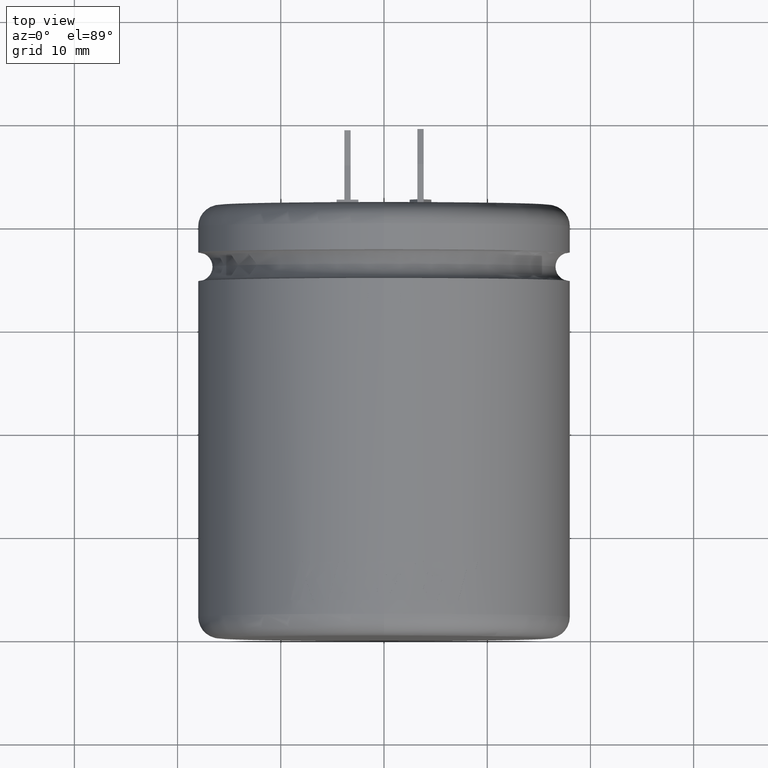
[diagram: clean part render]
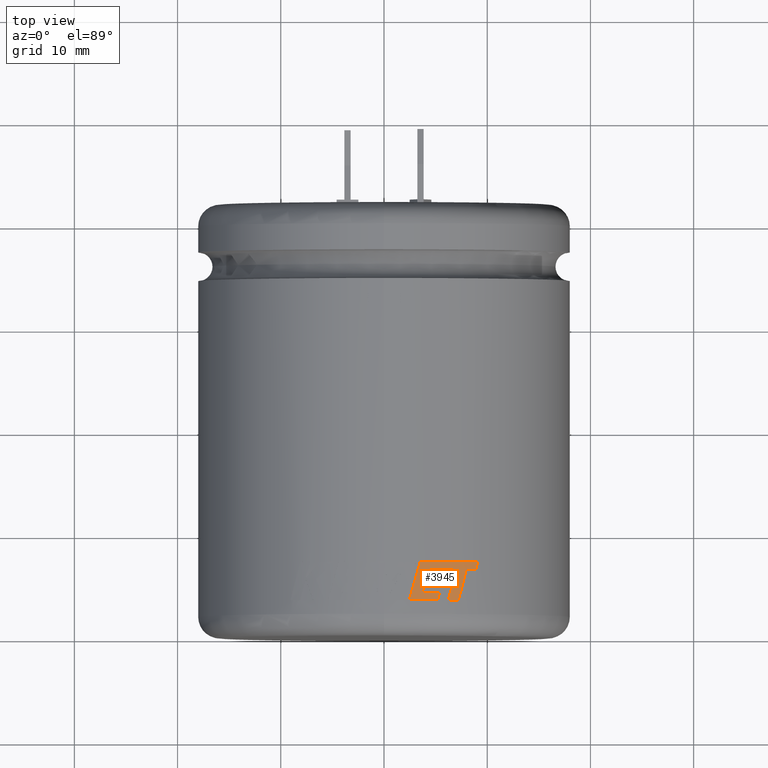
[diagram: same view with one face highlighted and labeled with its STEP entity id]
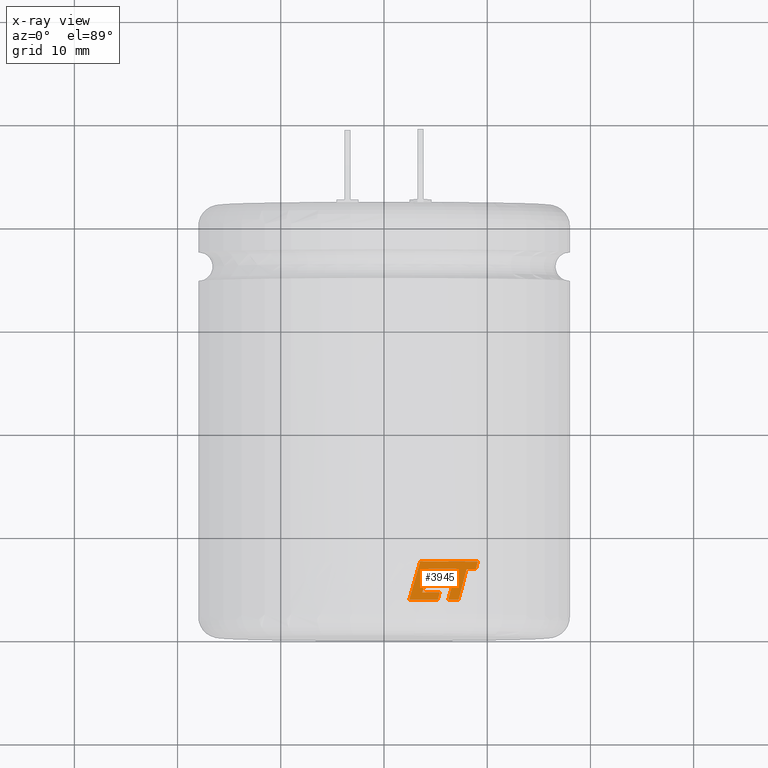
[diagram: x-ray of the same camera — body ghosted, the highlighted face saturated]
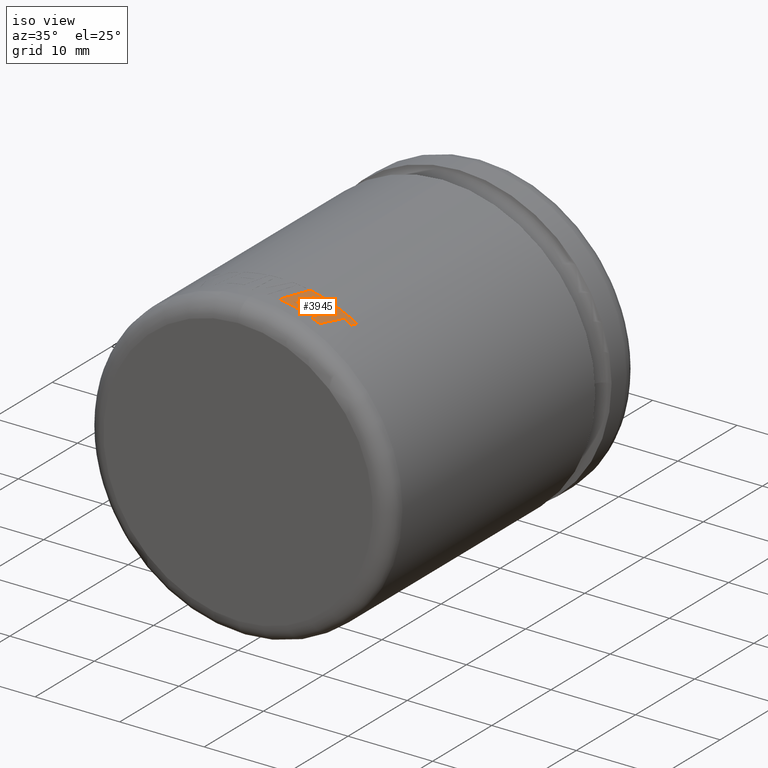
[diagram: same view with one face highlighted and labeled with its STEP entity id]
A machine part, top view. The second image highlights one B-rep face of the part: STEP entity #3945.
The next image is the same camera in x-ray: the body ghosted, the highlighted face saturated — about 0% of this face is hidden behind the body in this view.
A second angle (iso view) of the same face is appended — the face is thin or edge-on in the first view.
In plain terms, the highlighted cylindrical surface (partial cylindrical patch) has radius 17.99 mm, axis along (-0, -1, -0).
Its self-contained STEP definition (entity closure, byte-faithful):
#32 = AXIS2_PLACEMENT_3D ( 'NONE', #847, #2744, #3471 ) ;
#65 = ORIENTED_EDGE ( 'NONE', *, *, #3657, .T. ) ;
#70 = CARTESIAN_POINT ( 'NONE',  ( 3.875039006368816700, 4.759102484852002500, 17.56792295748571000 ) ) ;
#112 = CARTESIAN_POINT ( 'NONE',  ( 7.035057739732624600, 6.438231380346589800, 16.55741714756948500 ) ) ;
#123 = CARTESIAN_POINT ( 'NONE',  ( 6.336255115269936200, 6.441741036397330000, 16.84144248130786900 ) ) ;
#215 = CARTESIAN_POINT ( 'NONE',  ( 0.0000000000000000000, 4.142248356456962100, 0.0000000000000000000 ) ) ;
#219 = CARTESIAN_POINT ( 'NONE',  ( 7.740011967512791600, 5.436730270272074800, 16.24238547502647400 ) ) ;
#235 = VERTEX_POINT ( 'NONE', #2905 ) ;
#298 = VERTEX_POINT ( 'NONE', #1136 ) ;
#364 = VERTEX_POINT ( 'NONE', #3062 ) ;
#382 = VERTEX_POINT ( 'NONE', #1583 ) ;
#439 = B_SPLINE_CURVE_WITH_KNOTS ( 'NONE', 3,
 ( #2307, #3045, #70, #1973 ),
 .UNSPECIFIED., .F., .F.,
 ( 4, 4 ),
 ( 0.0000000000000000000, 1.000000000000000000 ),
 .UNSPECIFIED. ) ;
#468 = DIRECTION ( 'NONE',  ( 0.0000000000000000000, 0.0000000000000000000, -1.000000000000000000 ) ) ;
#470 = AXIS2_PLACEMENT_3D ( 'NONE', #3847, #3133, #3892 ) ;
#495 = CARTESIAN_POINT ( 'NONE',  ( 7.035057739732624600, 6.438231380346589800, 16.55741714756948500 ) ) ;
#501 = B_SPLINE_CURVE_WITH_KNOTS ( 'NONE', 3,
 ( #3207, #4729, #2076, #2857 ),
 .UNSPECIFIED., .F., .F.,
 ( 4, 4 ),
 ( 0.0000000000000000000, 1.000000000000000000 ),
 .UNSPECIFIED. ) ;
#541 = EDGE_CURVE ( 'NONE', #1486, #2996, #4773, .T. ) ;
#543 = VERTEX_POINT ( 'NONE', #3527 ) ;
#602 = EDGE_CURVE ( 'NONE', #298, #2828, #4109, .T. ) ;
#679 = CARTESIAN_POINT ( 'NONE',  ( 5.204913970324117400, 3.433728050141748900, 17.22059727656171500 ) ) ;
#798 = DIRECTION ( 'NONE',  ( -0.0000000000000000000, -1.000000000000000000, -0.0000000000000000000 ) ) ;
#800 = CARTESIAN_POINT ( 'NONE',  ( 3.516420449642963900, 7.157156118639040400, 17.64298407926881000 ) ) ;
#847 = CARTESIAN_POINT ( 'NONE',  ( 0.0000000000000000000, 5.067529549049536000, 0.0000000000000000000 ) ) ;
#855 = CARTESIAN_POINT ( 'NONE',  ( 6.232665063677374400, 3.433728050141735100, 16.87584031104867700 ) ) ;
#900 = CIRCLE ( 'NONE', #4129, 17.98999999999999800 ) ;
#918 = AXIS2_PLACEMENT_3D ( 'NONE', #3195, #2130, #3627 ) ;
#934 = DIRECTION ( 'NONE',  ( -0.0000000000000000000, -1.000000000000000000, -0.0000000000000000000 ) ) ;
#953 = ORIENTED_EDGE ( 'NONE', *, *, #1103, .F. ) ;
#1046 = CARTESIAN_POINT ( 'NONE',  ( 5.563200647594504400, 5.296932744752842500, 17.10833682098228100 ) ) ;
#1084 = VERTEX_POINT ( 'NONE', #4607 ) ;
#1103 = EDGE_CURVE ( 'NONE', #298, #543, #1348, .T. ) ;
#1119 = CARTESIAN_POINT ( 'NONE',  ( 7.997718135403983900, 6.438231380337257700, 16.11448431153259600 ) ) ;
#1126 = EDGE_CURVE ( 'NONE', #4309, #3087, #4498, .T. ) ;
#1127 = ORIENTED_EDGE ( 'NONE', *, *, #2392, .F. ) ;
#1136 = CARTESIAN_POINT ( 'NONE',  ( 5.500837962627832300, 5.067529549049536000, 17.12836482881283500 ) ) ;
#1240 = CARTESIAN_POINT ( 'NONE',  ( 6.502624833260656900, 4.435229160210015600, 16.77613749367972300 ) ) ;
#1256 = CARTESIAN_POINT ( 'NONE',  ( 5.333033303281469600, 3.906074921018548800, 17.18148252866608400 ) ) ;
#1306 = CARTESIAN_POINT ( 'NONE',  ( 9.075961542436331800, 7.157156118639027100, 15.53277251749399000 ) ) ;
#1348 = CIRCLE ( 'NONE', #32, 17.98999999999999800 ) ;
#1366 = DIRECTION ( 'NONE',  ( 0.0000000000000000000, 0.0000000000000000000, -1.000000000000000000 ) ) ;
#1382 = FACE_OUTER_BOUND ( 'NONE', #1839, .T. ) ;
#1409 = CARTESIAN_POINT ( 'NONE',  ( 7.035057739732624600, 6.438231380346589800, 16.55741714756948500 ) ) ;
#1425 = ORIENTED_EDGE ( 'NONE', *, *, #3791, .T. ) ;
#1486 = VERTEX_POINT ( 'NONE', #3544 ) ;
#1520 = EDGE_CURVE ( 'NONE', #1486, #4207, #1596, .T. ) ;
#1532 = CARTESIAN_POINT ( 'NONE',  ( 5.687594160713491200, 5.755739136159482100, 17.06726025649745900 ) ) ;
#1572 = B_SPLINE_CURVE_WITH_KNOTS ( 'NONE', 3,
 ( #1409, #2616, #1240, #3457 ),
 .UNSPECIFIED., .F., .F.,
 ( 4, 4 ),
 ( 0.0000000000000000000, 1.000000000000000000 ),
 .UNSPECIFIED. ) ;
#1583 = CARTESIAN_POINT ( 'NONE',  ( 4.152098789925732400, 5.755739136159496300, 17.50429020665211900 ) ) ;
#1596 = B_SPLINE_CURVE_WITH_KNOTS ( 'NONE', 3,
 ( #2867, #3255, #219, #3987 ),
 .UNSPECIFIED., .F., .F.,
 ( 4, 4 ),
 ( 0.0000000000000000000, 1.000000000000000000 ),
 .UNSPECIFIED. ) ;
#1601 = B_SPLINE_CURVE_WITH_KNOTS ( 'NONE', 3,
 ( #4595, #123, #3150, #495 ),
 .UNSPECIFIED., .F., .F.,
 ( 4, 4 ),
 ( 0.0000000000000000000, 1.000000000000000000 ),
 .UNSPECIFIED. ) ;
#1658 = DIRECTION ( 'NONE',  ( 0.0000000000000000000, 0.0000000000000000000, -1.000000000000000000 ) ) ;
#1742 = AXIS2_PLACEMENT_3D ( 'NONE', #3893, #934, #1658 ) ;
#1755 = CARTESIAN_POINT ( 'NONE',  ( 4.347806859457654700, 6.448296168183411200, 17.45670861052715500 ) ) ;
#1768 = EDGE_CURVE ( 'NONE', #2672, #4226, #2823, .T. ) ;
#1791 = CARTESIAN_POINT ( 'NONE',  ( 4.899400562229700100, 6.446696066929834300, 17.31932745019205600 ) ) ;
#1821 = ORIENTED_EDGE ( 'NONE', *, *, #4786, .T. ) ;
#1826 = EDGE_CURVE ( 'NONE', #2707, #4056, #1601, .T. ) ;
#1839 = EDGE_LOOP ( 'NONE', ( #1425, #4407, #3136, #2029, #4461, #4411, #2232, #3338, #3431, #4433, #1127, #4775, #4369, #65, #953, #4276, #1821, #4755 ) ) ;
#1973 = CARTESIAN_POINT ( 'NONE',  ( 3.960881484385034800, 5.067529549049522700, 17.54854745745800300 ) ) ;
#1987 = CARTESIAN_POINT ( 'NONE',  ( 9.016525734421604100, 6.917487561937582200, 15.56750148215099300 ) ) ;
#2029 = ORIENTED_EDGE ( 'NONE', *, *, #541, .F. ) ;
#2035 = CARTESIAN_POINT ( 'NONE',  ( 5.269027747821637000, 3.669901485580141700, 17.20121893033900300 ) ) ;
#2076 = CARTESIAN_POINT ( 'NONE',  ( 4.282660302386291000, 6.217443824175425100, 17.47293415762336400 ) ) ;
#2130 = DIRECTION ( 'NONE',  ( -0.0000000000000000000, -1.000000000000000000, -0.0000000000000000000 ) ) ;
#2133 = AXIS2_PLACEMENT_3D ( 'NONE', #4273, #4654, #3639 ) ;
#2204 = CIRCLE ( 'NONE', #470, 17.98999999999999800 ) ;
#2232 = ORIENTED_EDGE ( 'NONE', *, *, #1768, .T. ) ;
#2271 = EDGE_CURVE ( 'NONE', #4226, #235, #4739, .T. ) ;
#2273 = CARTESIAN_POINT ( 'NONE',  ( 0.0000000000000000000, 5.755739136159482100, 0.0000000000000000000 ) ) ;
#2278 = EDGE_CURVE ( 'NONE', #3087, #1084, #4434, .T. ) ;
#2296 = B_SPLINE_CURVE_WITH_KNOTS ( 'NONE', 3,
 ( #1119, #4828, #3392, #3742 ),
 .UNSPECIFIED., .F., .F.,
 ( 4, 4 ),
 ( 0.0000000000000000000, 1.000000000000000000 ),
 .UNSPECIFIED. ) ;
#2307 = CARTESIAN_POINT ( 'NONE',  ( 3.702936794065946100, 4.142248356456976300, 17.60478227923176000 ) ) ;
#2316 = CARTESIAN_POINT ( 'NONE',  ( 5.980591205886636200, 6.443495864422721400, 16.96680962432452600 ) ) ;
#2346 = CARTESIAN_POINT ( 'NONE',  ( 8.897060037837761100, 6.438150448534705600, 15.63593370039379200 ) ) ;
#2368 = VERTEX_POINT ( 'NONE', #1755 ) ;
#2392 = EDGE_CURVE ( 'NONE', #4309, #364, #3910, .T. ) ;
#2394 = CARTESIAN_POINT ( 'NONE',  ( 8.956890589820726900, 6.677819005236137300, 15.60188929835875300 ) ) ;
#2452 = CARTESIAN_POINT ( 'NONE',  ( 2.814514247858714000, 4.674870739640832400, 17.77205430587287400 ) ) ;
#2495 = CARTESIAN_POINT ( 'NONE',  ( 3.516420449642963900, 7.157156118639040400, 17.64298407926881000 ) ) ;
#2599 = CARTESIAN_POINT ( 'NONE',  ( 0.0000000000000000000, 3.433728050141748900, 0.0000000000000000000 ) ) ;
#2616 = CARTESIAN_POINT ( 'NONE',  ( 6.770191727986486700, 5.436730270278296500, 16.66995569566062200 ) ) ;
#2672 = VERTEX_POINT ( 'NONE', #4357 ) ;
#2707 = VERTEX_POINT ( 'NONE', #2316 ) ;
#2744 = DIRECTION ( 'NONE',  ( -0.0000000000000000000, -1.000000000000000000, -0.0000000000000000000 ) ) ;
#2750 = CARTESIAN_POINT ( 'NONE',  ( 9.075961542436331800, 7.157156118639027100, 15.53277251749399000 ) ) ;
#2758 = EDGE_CURVE ( 'NONE', #382, #2368, #501, .T. ) ;
#2823 = B_SPLINE_CURVE_WITH_KNOTS ( 'NONE', 3,
 ( #2346, #2394, #1987, #2750 ),
 .UNSPECIFIED., .F., .F.,
 ( 4, 4 ),
 ( 0.0000000000000000000, 1.000000000000000000 ),
 .UNSPECIFIED. ) ;
#2828 = VERTEX_POINT ( 'NONE', #1532 ) ;
#2836 = AXIS2_PLACEMENT_3D ( 'NONE', #215, #4002, #1366 ) ;
#2857 = CARTESIAN_POINT ( 'NONE',  ( 4.347806859457654700, 6.448296168183411200, 17.45670861052715500 ) ) ;
#2867 = CARTESIAN_POINT ( 'NONE',  ( 7.215693552927583600, 3.433728050141748900, 16.47949837071017100 ) ) ;
#2884 = CARTESIAN_POINT ( 'NONE',  ( 5.625453951460717600, 5.526335940456162300, 17.08796822520362800 ) ) ;
#2905 = CARTESIAN_POINT ( 'NONE',  ( 6.173695992918632100, 7.157156118639027100, 16.89750211679289600 ) ) ;
#2914 = VERTEX_POINT ( 'NONE', #800 ) ;
#2948 = DIRECTION ( 'NONE',  ( 0.0000000000000000000, 0.0000000000000000000, -1.000000000000000000 ) ) ;
#2985 = CARTESIAN_POINT ( 'NONE',  ( 5.444477236540414800, 6.445095965676270700, 17.15578318867856200 ) ) ;
#2996 = VERTEX_POINT ( 'NONE', #855 ) ;
#3045 = CARTESIAN_POINT ( 'NONE',  ( 3.789054356755899200, 4.450675420654482300, 17.58666857089717400 ) ) ;
#3062 = CARTESIAN_POINT ( 'NONE',  ( 2.461070877187443400, 3.433728050141735100, 17.82086502214356100 ) ) ;
#3087 = VERTEX_POINT ( 'NONE', #3337 ) ;
#3133 = DIRECTION ( 'NONE',  ( -0.0000000000000000000, -1.000000000000000000, -0.0000000000000000000 ) ) ;
#3136 = ORIENTED_EDGE ( 'NONE', *, *, #3819, .T. ) ;
#3150 = CARTESIAN_POINT ( 'NONE',  ( 6.687975651680427600, 6.439986208371953700, 16.70488836896301200 ) ) ;
#3195 = CARTESIAN_POINT ( 'NONE',  ( 0.0000000000000000000, 7.157156118639027100, 0.0000000000000000000 ) ) ;
#3207 = CARTESIAN_POINT ( 'NONE',  ( 4.152098789925732400, 5.755739136159496300, 17.50429020665211900 ) ) ;
#3237 = CARTESIAN_POINT ( 'NONE',  ( 7.997718135403983900, 6.438231380337257700, 16.11448431153259600 ) ) ;
#3255 = CARTESIAN_POINT ( 'NONE',  ( 7.479237101190280500, 4.435229160206904300, 16.36410350617384100 ) ) ;
#3310 = CARTESIAN_POINT ( 'NONE',  ( 5.980591205886636200, 6.443495864422721400, 16.96680962432452600 ) ) ;
#3337 = CARTESIAN_POINT ( 'NONE',  ( 5.396926644355851900, 4.142248356456962100, 17.16138930260140000 ) ) ;
#3338 = ORIENTED_EDGE ( 'NONE', *, *, #2271, .T. ) ;
#3389 = CYLINDRICAL_SURFACE ( 'NONE', #2133, 17.98999999999999800 ) ;
#3392 = CARTESIAN_POINT ( 'NONE',  ( 8.601876703399552700, 6.438177425802209100, 15.80389705320589600 ) ) ;
#3431 = ORIENTED_EDGE ( 'NONE', *, *, #4116, .T. ) ;
#3457 = CARTESIAN_POINT ( 'NONE',  ( 6.232665063677374400, 3.433728050141735100, 16.87584031104867700 ) ) ;
#3471 = DIRECTION ( 'NONE',  ( 0.0000000000000000000, 0.0000000000000000000, -1.000000000000000000 ) ) ;
#3501 = CARTESIAN_POINT ( 'NONE',  ( 5.204913970324117400, 3.433728050141748900, 17.22059727656171500 ) ) ;
#3527 = CARTESIAN_POINT ( 'NONE',  ( 3.960881484385034800, 5.067529549049522700, 17.54854745745800300 ) ) ;
#3530 = AXIS2_PLACEMENT_3D ( 'NONE', #2599, #4800, #2948 ) ;
#3544 = CARTESIAN_POINT ( 'NONE',  ( 7.215693552927583600, 3.433728050141748900, 16.47949837071017100 ) ) ;
#3627 = DIRECTION ( 'NONE',  ( 0.0000000000000000000, 0.0000000000000000000, -1.000000000000000000 ) ) ;
#3639 = DIRECTION ( 'NONE',  ( 0.0000000000000000000, 0.0000000000000000000, -1.000000000000000000 ) ) ;
#3657 = EDGE_CURVE ( 'NONE', #1084, #543, #439, .T. ) ;
#3659 = CARTESIAN_POINT ( 'NONE',  ( 2.461070877187443400, 3.433728050141735100, 17.82086502214356100 ) ) ;
#3742 = CARTESIAN_POINT ( 'NONE',  ( 8.897060037837761100, 6.438150448534705600, 15.63593370039379200 ) ) ;
#3791 = EDGE_CURVE ( 'NONE', #2368, #2707, #4536, .T. ) ;
#3819 = EDGE_CURVE ( 'NONE', #4056, #2996, #1572, .T. ) ;
#3847 = CARTESIAN_POINT ( 'NONE',  ( 0.0000000000000000000, 7.157156118639027100, 0.0000000000000000000 ) ) ;
#3872 = CARTESIAN_POINT ( 'NONE',  ( 5.396926644355851900, 4.142248356456962100, 17.16138930260140000 ) ) ;
#3892 = DIRECTION ( 'NONE',  ( 0.0000000000000000000, 0.0000000000000000000, -1.000000000000000000 ) ) ;
#3893 = CARTESIAN_POINT ( 'NONE',  ( 0.0000000000000000000, 3.433728050141748900, 0.0000000000000000000 ) ) ;
#3910 = CIRCLE ( 'NONE', #3530, 17.98999999999999800 ) ;
#3945 = ADVANCED_FACE ( 'NONE', ( #1382 ), #3389, .T. ) ;
#3951 = CARTESIAN_POINT ( 'NONE',  ( 3.166505013218976900, 5.916013429139929300, 17.71272567121032900 ) ) ;
#3976 = EDGE_CURVE ( 'NONE', #4207, #2672, #2296, .T. ) ;
#3987 = CARTESIAN_POINT ( 'NONE',  ( 7.997718135403983900, 6.438231380337257700, 16.11448431153259600 ) ) ;
#4002 = DIRECTION ( 'NONE',  ( -0.0000000000000000000, -1.000000000000000000, -0.0000000000000000000 ) ) ;
#4056 = VERTEX_POINT ( 'NONE', #112 ) ;
#4109 = B_SPLINE_CURVE_WITH_KNOTS ( 'NONE', 3,
 ( #4327, #1046, #2884, #4724 ),
 .UNSPECIFIED., .F., .F.,
 ( 4, 4 ),
 ( 0.0000000000000000000, 1.000000000000000000 ),
 .UNSPECIFIED. ) ;
#4116 = EDGE_CURVE ( 'NONE', #235, #2914, #2204, .T. ) ;
#4129 = AXIS2_PLACEMENT_3D ( 'NONE', #2273, #798, #468 ) ;
#4207 = VERTEX_POINT ( 'NONE', #3237 ) ;
#4226 = VERTEX_POINT ( 'NONE', #1306 ) ;
#4273 = CARTESIAN_POINT ( 'NONE',  ( 0.0000000000000000000, 42.00000000000000000, 0.0000000000000000000 ) ) ;
#4276 = ORIENTED_EDGE ( 'NONE', *, *, #602, .T. ) ;
#4309 = VERTEX_POINT ( 'NONE', #679 ) ;
#4327 = CARTESIAN_POINT ( 'NONE',  ( 5.500837962627832300, 5.067529549049536000, 17.12836482881283500 ) ) ;
#4357 = CARTESIAN_POINT ( 'NONE',  ( 8.897060037837761100, 6.438150448534705600, 15.63593370039379200 ) ) ;
#4369 = ORIENTED_EDGE ( 'NONE', *, *, #2278, .T. ) ;
#4407 = ORIENTED_EDGE ( 'NONE', *, *, #1826, .T. ) ;
#4411 = ORIENTED_EDGE ( 'NONE', *, *, #3976, .T. ) ;
#4433 = ORIENTED_EDGE ( 'NONE', *, *, #4448, .T. ) ;
#4434 = CIRCLE ( 'NONE', #2836, 17.98999999999999800 ) ;
#4448 = EDGE_CURVE ( 'NONE', #2914, #364, #4684, .T. ) ;
#4461 = ORIENTED_EDGE ( 'NONE', *, *, #1520, .T. ) ;
#4498 = B_SPLINE_CURVE_WITH_KNOTS ( 'NONE', 3,
 ( #3501, #2035, #1256, #3872 ),
 .UNSPECIFIED., .F., .F.,
 ( 4, 4 ),
 ( 0.0000000000000000000, 1.000000000000000000 ),
 .UNSPECIFIED. ) ;
#4536 = B_SPLINE_CURVE_WITH_KNOTS ( 'NONE', 3,
 ( #4758, #1791, #2985, #3310 ),
 .UNSPECIFIED., .F., .F.,
 ( 4, 4 ),
 ( 0.0000000000000000000, 1.000000000000000000 ),
 .UNSPECIFIED. ) ;
#4595 = CARTESIAN_POINT ( 'NONE',  ( 5.980591205886636200, 6.443495864422721400, 16.96680962432452600 ) ) ;
#4607 = CARTESIAN_POINT ( 'NONE',  ( 3.702936794065946100, 4.142248356456976300, 17.60478227923176000 ) ) ;
#4654 = DIRECTION ( 'NONE',  ( -0.0000000000000000000, -1.000000000000000000, -0.0000000000000000000 ) ) ;
#4684 = B_SPLINE_CURVE_WITH_KNOTS ( 'NONE', 3,
 ( #2495, #3951, #2452, #3659 ),
 .UNSPECIFIED., .F., .F.,
 ( 4, 4 ),
 ( 0.0000000000000000000, 1.000000000000000000 ),
 .UNSPECIFIED. ) ;
#4724 = CARTESIAN_POINT ( 'NONE',  ( 5.687594160713491200, 5.755739136159482100, 17.06726025649745900 ) ) ;
#4729 = CARTESIAN_POINT ( 'NONE',  ( 4.217422916390997800, 5.986591480167454000, 17.48879502100064400 ) ) ;
#4739 = CIRCLE ( 'NONE', #918, 17.98999999999999800 ) ;
#4755 = ORIENTED_EDGE ( 'NONE', *, *, #2758, .T. ) ;
#4758 = CARTESIAN_POINT ( 'NONE',  ( 4.347806859457654700, 6.448296168183411200, 17.45670861052715500 ) ) ;
#4773 = CIRCLE ( 'NONE', #1742, 17.98999999999999800 ) ;
#4775 = ORIENTED_EDGE ( 'NONE', *, *, #1126, .T. ) ;
#4786 = EDGE_CURVE ( 'NONE', #2828, #382, #900, .T. ) ;
#4800 = DIRECTION ( 'NONE',  ( -0.0000000000000000000, -1.000000000000000000, -0.0000000000000000000 ) ) ;
#4828 = CARTESIAN_POINT ( 'NONE',  ( 8.301935798574977100, 6.438204403069726700, 15.96349920553627100 ) ) ;